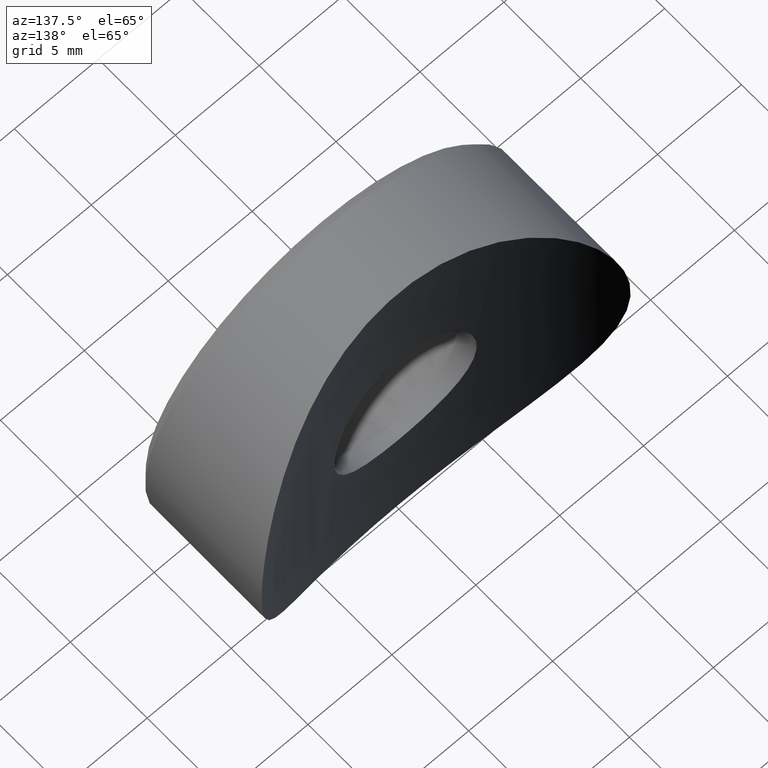
[diagram: clean part render]
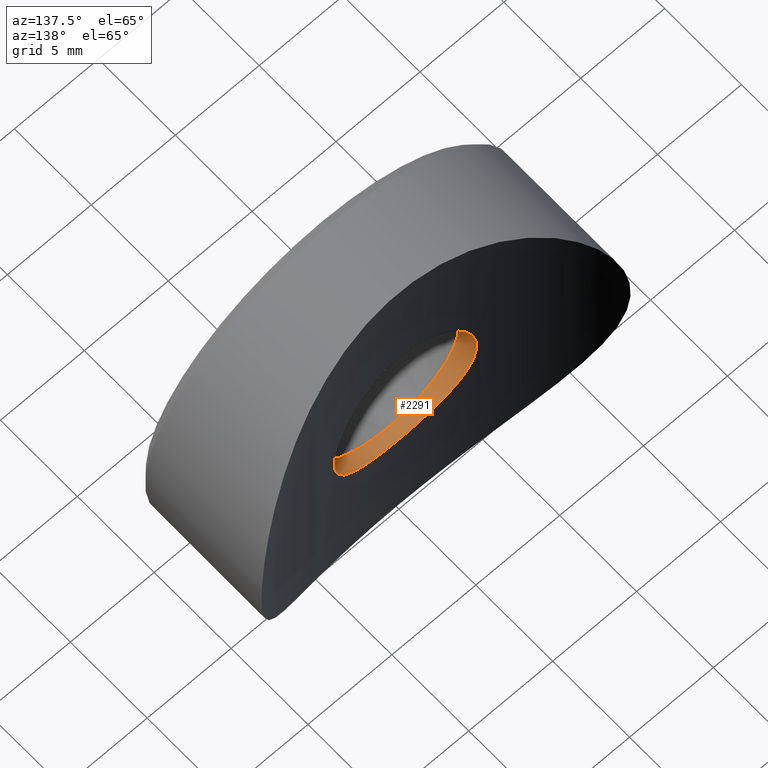
[diagram: same view with one face highlighted and labeled with its STEP entity id]
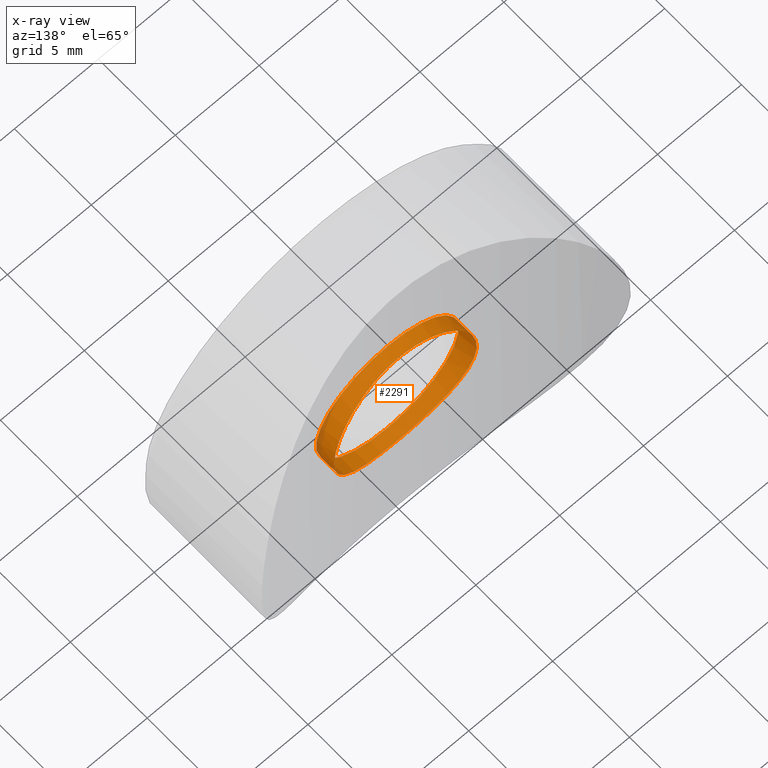
[diagram: x-ray of the same camera — body ghosted, the highlighted face saturated]
A machine part, auxiliary view. The second image highlights one B-rep face of the part: STEP entity #2291.
The next image is the same camera in x-ray: the body ghosted, the highlighted face saturated — about 3% of this face is hidden behind the body in this view.
In plain terms, the highlighted cylindrical surface (bore or boss wall) has radius 4.25 mm, axis along (-0, -1, -0).
Its self-contained STEP definition (entity closure, byte-faithful):
#57 = CARTESIAN_POINT ( 'NONE',  ( 2.810210554180509579, 5.186154573832988390, -3.200255997920374629 ) ) ;
#151 = CARTESIAN_POINT ( 'NONE',  ( 3.819725345298614183, 5.346666967095663026, 1.884146675043101293 ) ) ;
#193 = CARTESIAN_POINT ( 'NONE',  ( -0.5525578668103006130, 5.005411021145239836, 4.223266058465389605 ) ) ;
#224 = EDGE_LOOP ( 'NONE', ( #13224 ) ) ;
#538 = CARTESIAN_POINT ( 'NONE',  ( -4.249801277299170899, 5.430330066556780189, 0.2836326168942768233 ) ) ;
#582 = CARTESIAN_POINT ( 'NONE',  ( -2.598455551036930267, 5.158544096963465719, -3.374758883897539974 ) ) ;
#897 = CARTESIAN_POINT ( 'NONE',  ( 0.000000000000000000, 8.826829395386770472, 0.000000000000000000 ) ) ;
#1066 = CARTESIAN_POINT ( 'NONE',  ( 1.102370467402856269, 5.026929500373567450, -4.113907872993309844 ) ) ;
#1111 = CARTESIAN_POINT ( 'NONE',  ( 4.113202836554016528, 5.402772338602679802, -1.105615089143639818 ) ) ;
#1207 = CARTESIAN_POINT ( 'NONE',  ( 2.808420016093003291, 5.185896099792188352, 3.202074843122579395 ) ) ;
#1245 = CARTESIAN_POINT ( 'NONE',  ( 3.686998261433509505, 5.322492604036392017, 2.131890990882719716 ) ) ;
#1352 = CARTESIAN_POINT ( 'NONE',  ( 0.000000000000000000, 4.250000000000000000, 0.000000000000000000 ) ) ;
#1606 = CARTESIAN_POINT ( 'NONE',  ( -0.2815391734600665163, 4.999999999999998224, -4.249999999999998224 ) ) ;
#1651 = CARTESIAN_POINT ( 'NONE',  ( -2.133031478875639930, 5.106280212341133939, -3.686617078743818610 ) ) ;
#2022 = DIRECTION ( 'NONE',  ( -0.000000000000000000, -1.000000000000000000, -0.000000000000000000 ) ) ;
#2197 = CARTESIAN_POINT ( 'NONE',  ( 3.376762351218155711, 5.270062170342488805, -2.595765663345576790 ) ) ;
#2291 = ADVANCED_FACE ( 'NONE', ( #9717, #10551 ), #6890, .F. ) ;
#2293 = CARTESIAN_POINT ( 'NONE',  ( 1.107707186172353309, 5.027194874037162364, 4.112548186397214423 ) ) ;
#2340 = CARTESIAN_POINT ( 'NONE',  ( 0.5615337841234564475, 5.005675950349724346, 4.221936475721169479 ) ) ;
#2691 = CARTESIAN_POINT ( 'NONE',  ( -4.031182700728252577, 5.386507250273369962, 1.374787350965278598 ) ) ;
#2780 = CARTESIAN_POINT ( 'NONE',  ( -1.888731768045537107, 5.082746475481112469, -3.817305616495520582 ) ) ;
#2819 = CARTESIAN_POINT ( 'NONE',  ( -3.820044543335833875, 5.346727481232948165, -1.883346161087306792 ) ) ;
#3106 = EDGE_LOOP ( 'NONE', ( #12827 ) ) ;
#3265 = CARTESIAN_POINT ( 'NONE',  ( 3.687455259479745617, 5.322560136854229462, -2.131477671697137755 ) ) ;
#3311 = CARTESIAN_POINT ( 'NONE',  ( 0.2815391734600680151, 5.000000000000000888, -4.249999999999999112 ) ) ;
#3362 = CARTESIAN_POINT ( 'NONE',  ( -2.130267222668005722, 5.106015862516931847, 3.688076469070612262 ) ) ;
#3410 = CARTESIAN_POINT ( 'NONE',  ( -1.103217097764207288, 5.026931393537534376, 4.113904280845685157 ) ) ;
#3416 = DIRECTION ( 'NONE',  ( -0.000000000000000000, -1.000000000000000000, -0.000000000000000000 ) ) ;
#3845 = CARTESIAN_POINT ( 'NONE',  ( -2.806544054703445479, 5.185658808697253264, 3.203522183423413328 ) ) ;
#3886 = CARTESIAN_POINT ( 'NONE',  ( -3.816648409875244230, 5.346100860391350018, 1.890415071464895957 ) ) ;
#3930 = CARTESIAN_POINT ( 'NONE',  ( -2.812262242037815607, 5.186431550786033462, -3.198434901025083210 ) ) ;
#3998 = EDGE_CURVE ( 'NONE', #13660, #13660, #6511, .T. ) ;
#4187 = CARTESIAN_POINT ( 'NONE',  ( 4.250164791211702209, 5.430404450830129015, 0.2754186577235205879 ) ) ;
#4219 = AXIS2_PLACEMENT_3D ( 'NONE', #897, #2022, #7175 ) ;
#4362 = CARTESIAN_POINT ( 'NONE',  ( 3.201103768577770126, 5.242139479029234828, -2.809244822697025690 ) ) ;
#4406 = CARTESIAN_POINT ( 'NONE',  ( -1.370279305567333683, 5.042774277909884084, 4.032560367937328749 ) ) ;
#4843 = CARTESIAN_POINT ( 'NONE',  ( -4.114870442906261694, 5.403104215282811040, -1.098838732332860113 ) ) ;
#5402 = CARTESIAN_POINT ( 'NONE',  ( 4.113667801120810097, 5.402865294487540382, 1.103457135563285840 ) ) ;
#5453 = CARTESIAN_POINT ( 'NONE',  ( 1.372619087959432216, 5.042914525104962742, 4.031840749812959146 ) ) ;
#5591 = DIRECTION ( 'NONE',  ( 0.000000000000000000, 0.000000000000000000, -1.000000000000000000 ) ) ;
#5632 = CARTESIAN_POINT ( 'NONE',  ( 0.000000000000000000, 5.000000000000000888, -4.250000000000000000 ) ) ;
#5973 = CARTESIAN_POINT ( 'NONE',  ( -4.222865945203310822, 5.424763870147390143, -0.5540835049165534487 ) ) ;
#6020 = CARTESIAN_POINT ( 'NONE',  ( -3.202623579307927848, 5.242374177950092751, -2.807491218748115802 ) ) ;
#6376 = CARTESIAN_POINT ( 'NONE',  ( 1.372682597147003358, 5.042914358949211362, -4.031846155124416242 ) ) ;
#6464 = CARTESIAN_POINT ( 'NONE',  ( 4.033224829934452416, 5.386905617714218053, 1.368724909466035200 ) ) ;
#6506 = CARTESIAN_POINT ( 'NONE',  ( 3.379771783012816222, 5.270561069558520551, 2.591535851878376207 ) ) ;
#6511 = B_SPLINE_CURVE_WITH_KNOTS ( 'NONE', 3,
 ( #9619, #3311, #9518, #1066, #6376, #10686, #12791, #11594, #57, #4362, #2197, #3265, #7444, #11539, #1111, #10501, #8515, #4187, #11727, #5402, #6464, #151, #1245, #6506, #12839, #1207, #7579, #8657, #8614, #5453, #2293, #2340, #9711, #10735, #193, #3410, #4406, #9667, #3362, #11775, #3845, #11157, #9085, #12205, #3886, #2691, #7982, #9127, #538, #11245, #5973, #4843, #10054, #2819, #11200, #10229, #6020, #3930, #582, #1651, #2780, #11287, #13353, #7934, #1606, #10143 ),
 .UNSPECIFIED., .T., .F.,
 ( 4, 2, 2, 2, 2, 2, 2, 2, 2, 2, 2, 2, 2, 2, 2, 2, 2, 2, 2, 2, 2, 2, 2, 2, 2, 2, 2, 2, 2, 2, 2, 2, 4 ),
 ( 0.000000000000000000, 0.0008324699609963882212, 0.001664939921992776442, 0.002497409882989164772, 0.003329879843985552885, 0.004162349804981941431, 0.004994819765978329544, 0.005827289726974717657, 0.006659759687971105770, 0.007492229648967494750, 0.008324699609963882863, 0.009157169570960270108, 0.009989639531956659088, 0.01082210949295304807, 0.01165457945394943531, 0.01248704941494582256, 0.01331951937594220980, 0.01415198933693859358, 0.01498445929793498083, 0.01581692925893136287, 0.01664939921992774838, 0.01748186918092413736, 0.01831433914192051940, 0.01914680910291690838, 0.01997927906391329042, 0.02081174902490967593, 0.02164421898590606144, 0.02247668894690245042, 0.02330915890789883593, 0.02414162886889522838, 0.02497409882989161389, 0.02580656879088800287, 0.02663903875188438838 ),
 .UNSPECIFIED. ) ;
#6890 = CYLINDRICAL_SURFACE ( 'NONE', #4219, 4.250000000000000000 ) ;
#7058 = VERTEX_POINT ( 'NONE', #8792 ) ;
#7175 = DIRECTION ( 'NONE',  ( 0.000000000000000000, 0.000000000000000000, -1.000000000000000000 ) ) ;
#7444 = CARTESIAN_POINT ( 'NONE',  ( 3.819021201753174388, 5.346541473923761778, -1.885238756090964696 ) ) ;
#7579 = CARTESIAN_POINT ( 'NONE',  ( 2.594624284595132835, 5.158104003117766290, 3.377410276777525144 ) ) ;
#7934 = CARTESIAN_POINT ( 'NONE',  ( -0.5594163357959245353, 5.005604551952165693, -4.222297069069299802 ) ) ;
#7982 = CARTESIAN_POINT ( 'NONE',  ( -4.112940117760708780, 5.402721284368402266, 1.105916736726825000 ) ) ;
#8515 = CARTESIAN_POINT ( 'NONE',  ( 4.249833701182157419, 5.430336701312442393, -0.2804811968282863166 ) ) ;
#8614 = CARTESIAN_POINT ( 'NONE',  ( 1.886260967193333915, 5.082510364243387535, 3.818617885587111349 ) ) ;
#8657 = CARTESIAN_POINT ( 'NONE',  ( 2.135072001165618349, 5.106519256612530810, 3.685165248090223944 ) ) ;
#8792 = CARTESIAN_POINT ( 'NONE',  ( 0.000000000000000000, 4.250000000000000000, -4.250000000000000000 ) ) ;
#9085 = CARTESIAN_POINT ( 'NONE',  ( -3.377867695080260191, 5.270251185721046561, 2.594051491710704482 ) ) ;
#9127 = CARTESIAN_POINT ( 'NONE',  ( -4.221741524338718854, 5.424534255771239266, 0.5623404151687568797 ) ) ;
#9518 = CARTESIAN_POINT ( 'NONE',  ( 0.5582333046488122674, 5.005601905052037282, -4.222302003938042780 ) ) ;
#9619 = CARTESIAN_POINT ( 'NONE',  ( 2.710505431213761085E-16, 4.999999999999999112, -4.249999999999998224 ) ) ;
#9667 = CARTESIAN_POINT ( 'NONE',  ( -1.882053045966108673, 5.082146369412742892, 3.820613148238725110 ) ) ;
#9711 = CARTESIAN_POINT ( 'NONE',  ( 0.2794551810172385409, 5.000022643127356226, 4.249887050744065142 ) ) ;
#9717 = FACE_OUTER_BOUND ( 'NONE', #224, .T. ) ;
#10054 = CARTESIAN_POINT ( 'NONE',  ( -4.032771650087032533, 5.386819851995481301, -1.369848858015539905 ) ) ;
#10143 = CARTESIAN_POINT ( 'NONE',  ( 2.710505431213761085E-16, 4.999999999999999112, -4.249999999999998224 ) ) ;
#10229 = CARTESIAN_POINT ( 'NONE',  ( -3.380969728401652663, 5.270748725609802676, -2.590157803694792094 ) ) ;
#10501 = CARTESIAN_POINT ( 'NONE',  ( 4.222665826051291482, 5.424721198113262588, -0.5567006569752480649 ) ) ;
#10551 = FACE_OUTER_BOUND ( 'NONE', #3106, .T. ) ;
#10686 = CARTESIAN_POINT ( 'NONE',  ( 1.887025309432519116, 5.082574356308747987, -3.818268771663787753 ) ) ;
#10735 = CARTESIAN_POINT ( 'NONE',  ( -0.2760090558178462938, 4.999977496917206388, 4.250112250680679438 ) ) ;
#11157 = CARTESIAN_POINT ( 'NONE',  ( -3.198658275679501894, 5.241760320320277167, 2.812086262208933984 ) ) ;
#11200 = CARTESIAN_POINT ( 'NONE',  ( -3.689731481555346360, 5.322969636345511013, -2.127382275574554171 ) ) ;
#11245 = CARTESIAN_POINT ( 'NONE',  ( -4.250196614232329750, 5.430410962633926530, -0.2776456343399051896 ) ) ;
#11287 = CARTESIAN_POINT ( 'NONE',  ( -1.377598965828539024, 5.043253435374856153, -4.030055948830091772 ) ) ;
#11539 = CARTESIAN_POINT ( 'NONE',  ( 4.031208825706436016, 5.386518531447738845, -1.374191948184168677 ) ) ;
#11548 = EDGE_CURVE ( 'NONE', #7058, #7058, #11715, .T. ) ;
#11594 = CARTESIAN_POINT ( 'NONE',  ( 2.592298349430368187, 5.157806901093226593, -3.379275003102179653 ) ) ;
#11715 = CIRCLE ( 'NONE', #12535, 4.250000000000000000 ) ;
#11727 = CARTESIAN_POINT ( 'NONE',  ( 4.222403944353834149, 5.424668963698456636, 0.5578399041919098744 ) ) ;
#11775 = CARTESIAN_POINT ( 'NONE',  ( -2.593009359740197972, 5.157887280677808661, 3.378794007036495461 ) ) ;
#12205 = CARTESIAN_POINT ( 'NONE',  ( -3.685757786510325040, 5.322271073379255313, 2.134076579294158726 ) ) ;
#12535 = AXIS2_PLACEMENT_3D ( 'NONE', #1352, #3416, #5591 ) ;
#12791 = CARTESIAN_POINT ( 'NONE',  ( 2.130855865990993969, 5.106082525464576527, -3.687677257762997041 ) ) ;
#12827 = ORIENTED_EDGE ( 'NONE', *, *, #3998, .F. ) ;
#12839 = CARTESIAN_POINT ( 'NONE',  ( 3.203316912745056477, 5.242458482158687261, 2.807003214154159654 ) ) ;
#13224 = ORIENTED_EDGE ( 'NONE', *, *, #11548, .T. ) ;
#13353 = CARTESIAN_POINT ( 'NONE',  ( -1.107972717409017704, 5.027193348484397362, -4.112558283319988739 ) ) ;
#13660 = VERTEX_POINT ( 'NONE', #5632 ) ;